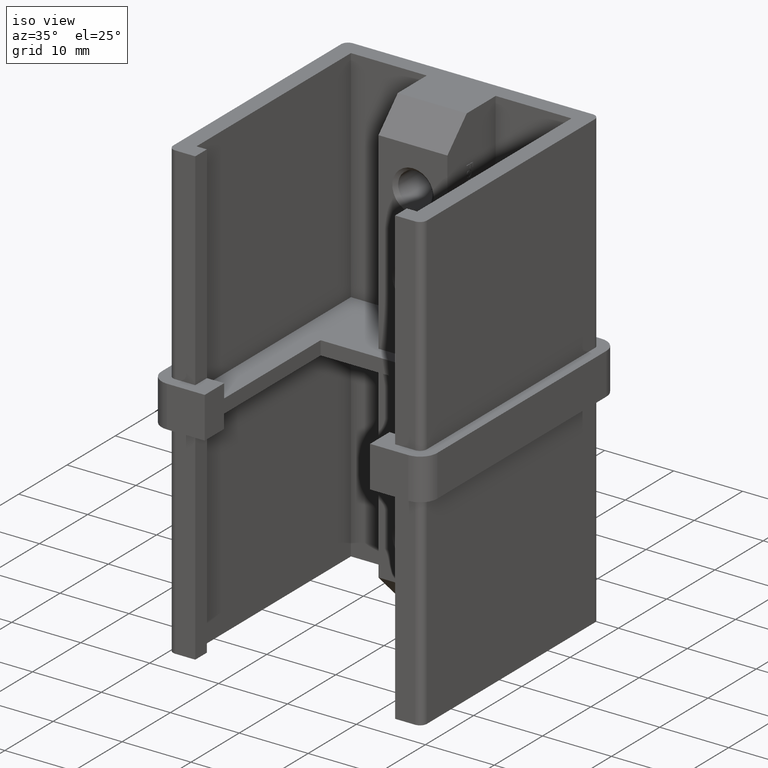
[diagram: clean part render]
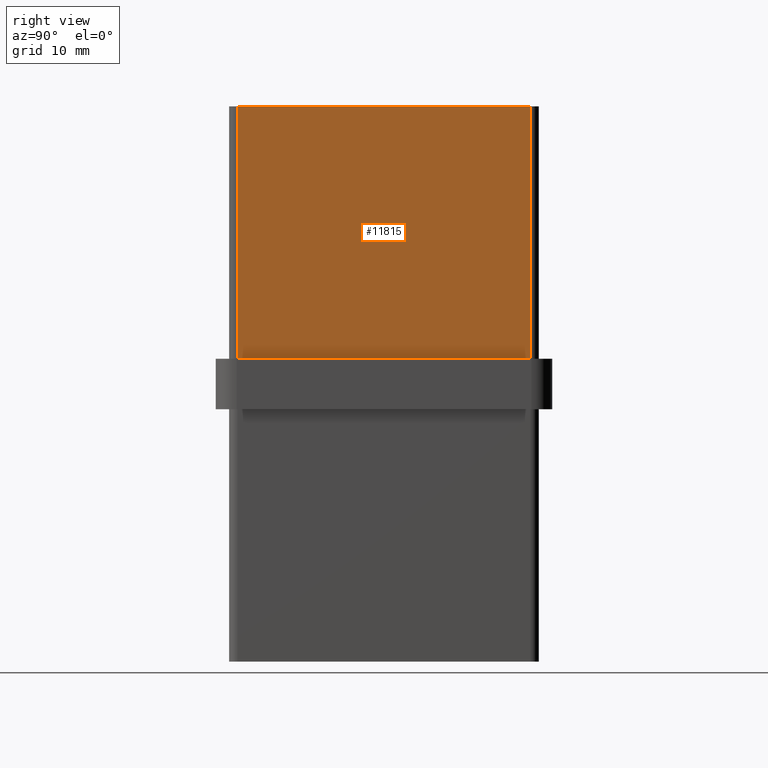
[diagram: tour spotlight — one face highlighted and labeled with its STEP entity id]
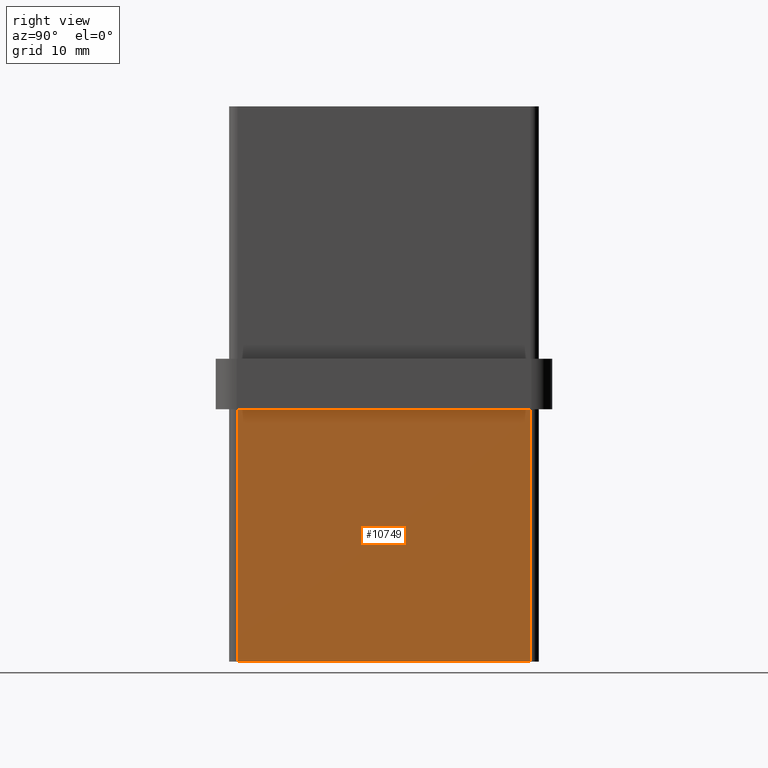
[diagram: tour spotlight — one face highlighted and labeled with its STEP entity id]
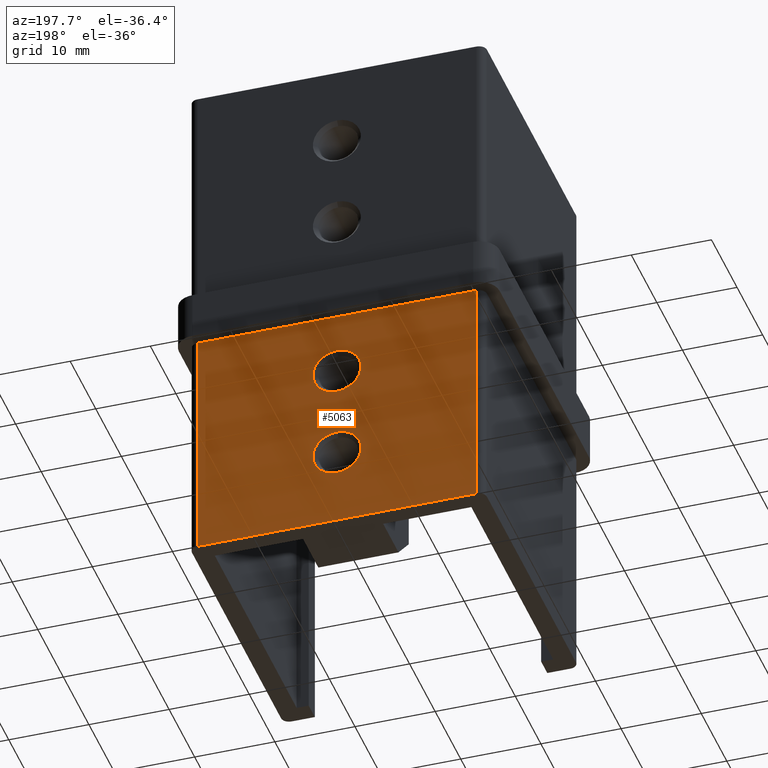
[diagram: tour spotlight — one face highlighted and labeled with its STEP entity id]
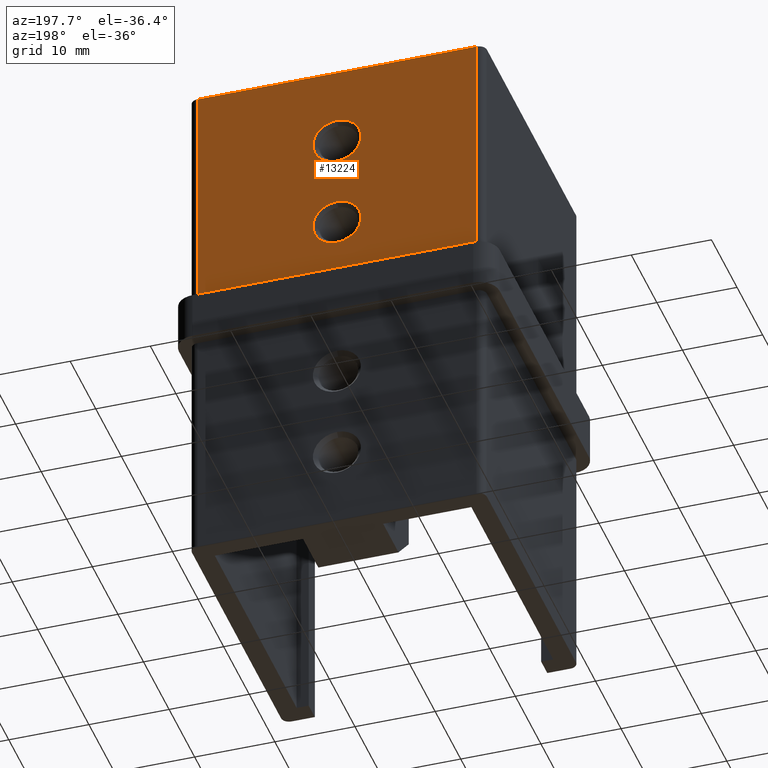
[diagram: tour spotlight — one face highlighted and labeled with its STEP entity id]
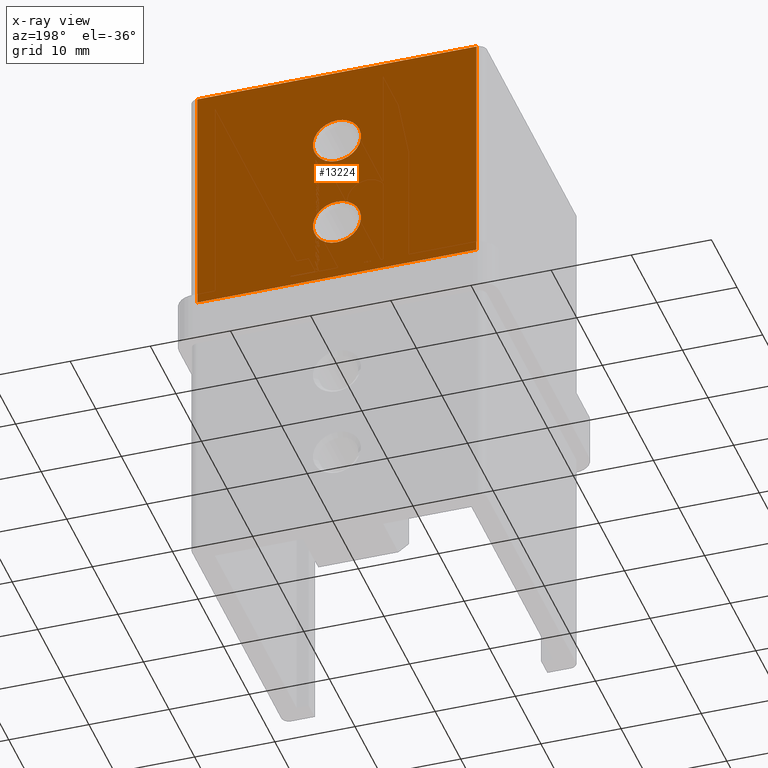
[diagram: x-ray of the same camera — body ghosted, this tour face saturated]
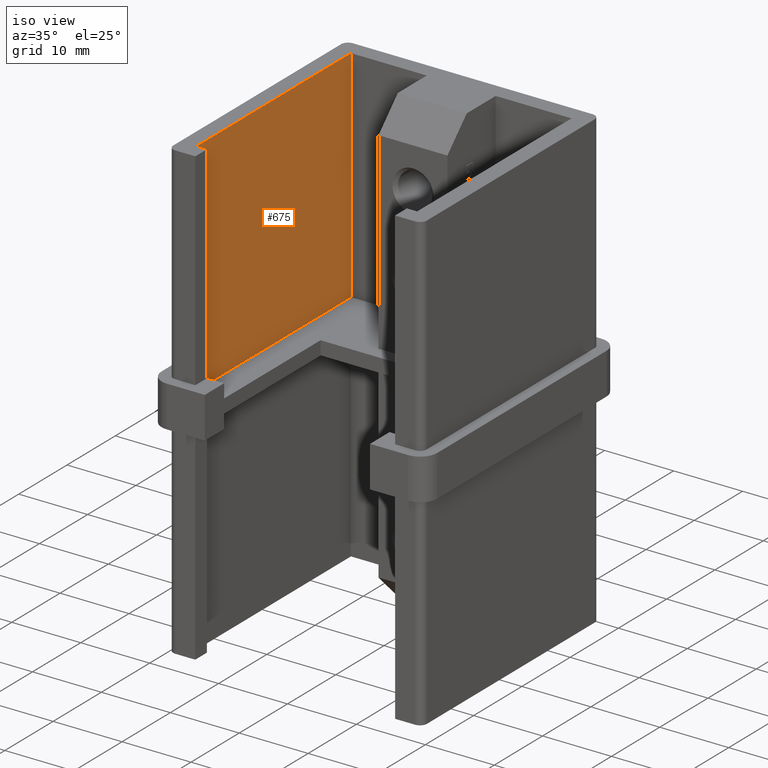
[diagram: tour spotlight — one face highlighted and labeled with its STEP entity id]
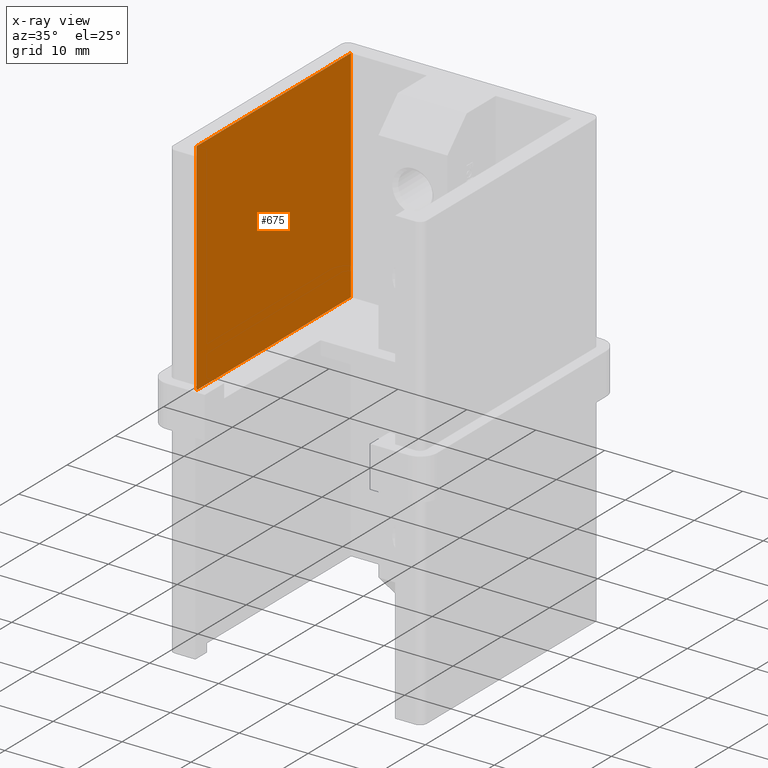
[diagram: x-ray of the same camera — body ghosted, this tour face saturated]
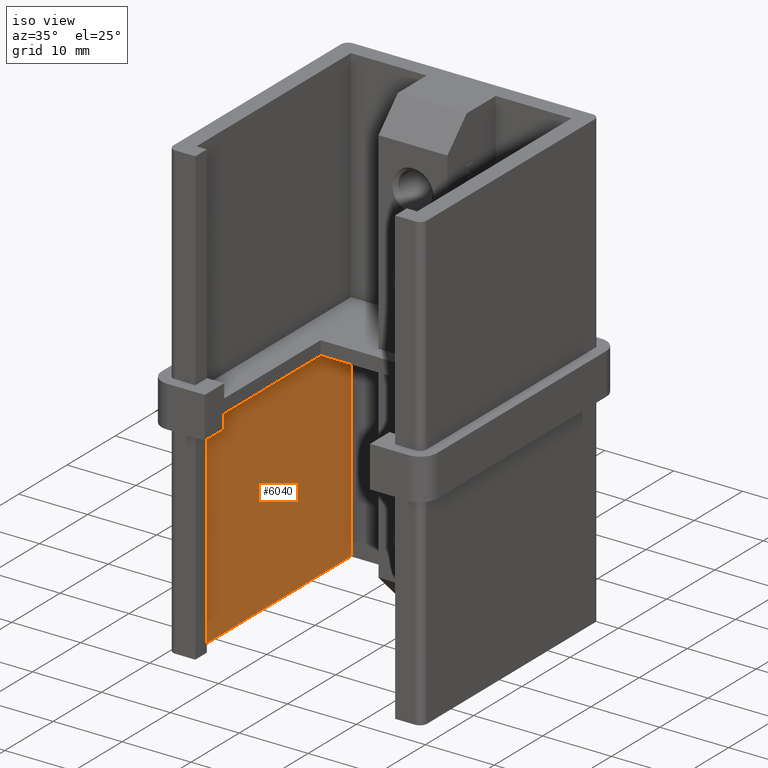
[diagram: tour spotlight — one face highlighted and labeled with its STEP entity id]
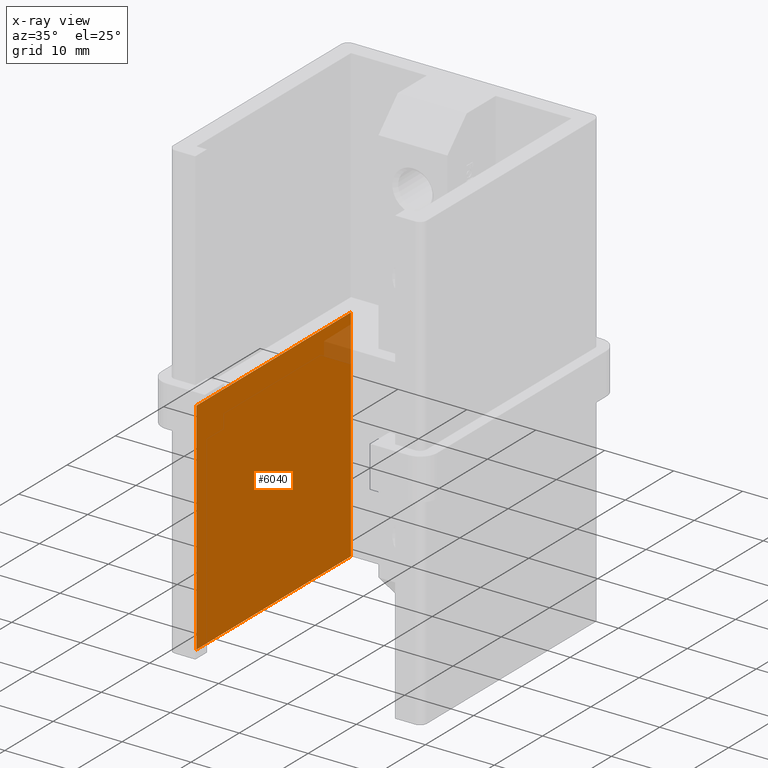
[diagram: x-ray of the same camera — body ghosted, this tour face saturated]
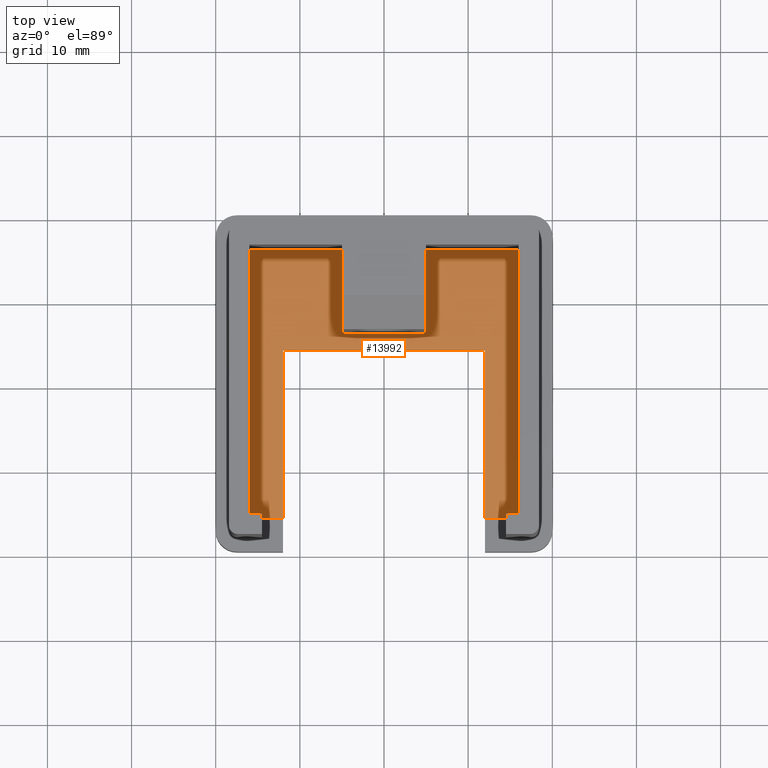
[diagram: tour spotlight — one face highlighted and labeled with its STEP entity id]
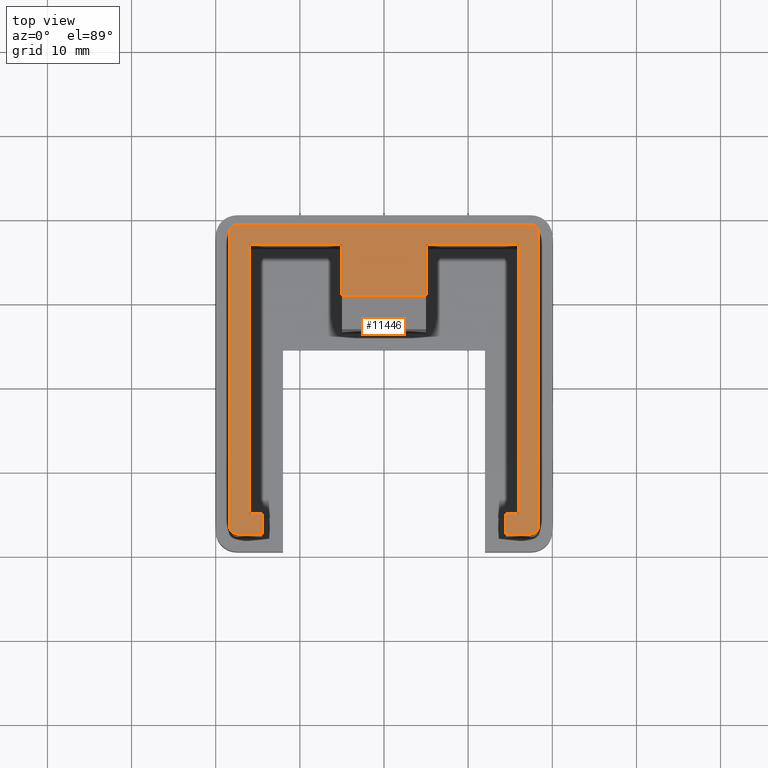
[diagram: tour spotlight — one face highlighted and labeled with its STEP entity id]
A machine part: a face-by-face anatomy tour. The part has 308 B-rep faces; the first image is the clean iso view, then the 8 largest visible faces are spotlighted one at a time (largest first), each with its STEP entity span.

Face 1 — right view, entity #11815. In plain terms, the highlighted planar face has unit normal (-1, 0, 0).
Definition (entity closure, byte-faithful):
#435 = CARTESIAN_POINT ( 'NONE',  ( 18.39999999999999147, 17.39999999999999858, 33.00000000000000000 ) ) ;
#609 = CARTESIAN_POINT ( 'NONE',  ( 18.39999999999999147, 17.39999999999999858, 3.000000000000000000 ) ) ;
#788 = CARTESIAN_POINT ( 'NONE',  ( 18.39999999999999147, 18.39999999999999858, 3.000000000000000000 ) ) ;
#965 = ORIENTED_EDGE ( 'NONE', *, *, #6591, .T. ) ;
#1014 = ORIENTED_EDGE ( 'NONE', *, *, #3425, .F. ) ;
#1163 = EDGE_LOOP ( 'NONE', ( #1014, #965, #5733, #7030 ) ) ;
#1873 = EDGE_CURVE ( 'NONE', #10950, #12580, #7161, .T. ) ;
#2587 = LINE ( 'NONE', #10184, #12107 ) ;
#3236 = CARTESIAN_POINT ( 'NONE',  ( 18.39999999999999147, 18.39999999999999858, 33.00000000000000000 ) ) ;
#3425 = EDGE_CURVE ( 'NONE', #13563, #12580, #9338, .T. ) ;
#3887 = CARTESIAN_POINT ( 'NONE',  ( 18.39999999999999147, 18.39999999999999858, 33.00000000000000000 ) ) ;
#4025 = DIRECTION ( 'NONE',  ( -1.000000000000000000, 0.000000000000000000, 0.000000000000000000 ) ) ;
#4479 = DIRECTION ( 'NONE',  ( 0.000000000000000000, 0.000000000000000000, -1.000000000000000000 ) ) ;
#5035 = DIRECTION ( 'NONE',  ( 0.000000000000000000, 0.000000000000000000, 1.000000000000000000 ) ) ;
#5733 = ORIENTED_EDGE ( 'NONE', *, *, #10377, .T. ) ;
#5852 = DIRECTION ( 'NONE',  ( -0.000000000000000000, -0.000000000000000000, 1.000000000000000000 ) ) ;
#6591 = EDGE_CURVE ( 'NONE', #13563, #7337, #2587, .T. ) ;
#6713 = FACE_OUTER_BOUND ( 'NONE', #1163, .T. ) ;
#6811 = VECTOR ( 'NONE', #5852, 1000.000000000000000 ) ;
#7030 = ORIENTED_EDGE ( 'NONE', *, *, #1873, .T. ) ;
#7161 = LINE ( 'NONE', #11428, #6811 ) ;
#7337 = VERTEX_POINT ( 'NONE', #10992 ) ;
#7621 = LINE ( 'NONE', #788, #12337 ) ;
#9338 = LINE ( 'NONE', #3236, #9525 ) ;
#9508 = PLANE ( 'NONE',  #12668 ) ;
#9525 = VECTOR ( 'NONE', #10049, 1000.000000000000000 ) ;
#10049 = DIRECTION ( 'NONE',  ( -0.000000000000000000, 1.000000000000000000, -0.000000000000000000 ) ) ;
#10184 = CARTESIAN_POINT ( 'NONE',  ( 18.39999999999999147, -17.40000000000000568, 33.00000000000000000 ) ) ;
#10377 = EDGE_CURVE ( 'NONE', #7337, #10950, #7621, .T. ) ;
#10950 = VERTEX_POINT ( 'NONE', #609 ) ;
#10992 = CARTESIAN_POINT ( 'NONE',  ( 18.39999999999999147, -17.40000000000000568, 3.000000000000000000 ) ) ;
#11095 = DIRECTION ( 'NONE',  ( -0.000000000000000000, 1.000000000000000000, -0.000000000000000000 ) ) ;
#11428 = CARTESIAN_POINT ( 'NONE',  ( 18.39999999999999147, 17.39999999999999858, 33.00000000000000000 ) ) ;
#11815 = ADVANCED_FACE ( 'NONE', ( #6713 ), #9508, .F. ) ;
#12107 = VECTOR ( 'NONE', #4479, 1000.000000000000000 ) ;
#12337 = VECTOR ( 'NONE', #11095, 1000.000000000000000 ) ;
#12580 = VERTEX_POINT ( 'NONE', #435 ) ;
#12668 = AXIS2_PLACEMENT_3D ( 'NONE', #3887, #4025, #5035 ) ;
#13563 = VERTEX_POINT ( 'NONE', #14585 ) ;
#14585 = CARTESIAN_POINT ( 'NONE',  ( 18.39999999999999147, -17.40000000000000568, 33.00000000000000000 ) ) ;

Face 2 — right view, entity #10749. In plain terms, the highlighted planar face has unit normal (1, -0, 0).
Definition (entity closure, byte-faithful):
#807 = ORIENTED_EDGE ( 'NONE', *, *, #4789, .F. ) ;
#1009 = CARTESIAN_POINT ( 'NONE',  ( 18.39999999999999147, 18.39999999999999858, -33.00000000000000000 ) ) ;
#1016 = VECTOR ( 'NONE', #13873, 1000.000000000000000 ) ;
#1430 = CARTESIAN_POINT ( 'NONE',  ( 18.39999999999999147, 17.39999999999999858, -33.00000000000000000 ) ) ;
#1762 = ORIENTED_EDGE ( 'NONE', *, *, #5074, .T. ) ;
#2136 = CARTESIAN_POINT ( 'NONE',  ( 18.39999999999999147, 17.39999999999999858, -33.00000000000000000 ) ) ;
#2618 = LINE ( 'NONE', #14126, #5483 ) ;
#3290 = CARTESIAN_POINT ( 'NONE',  ( 18.39999999999999147, -17.40000000000000568, -3.000000000000000000 ) ) ;
#3698 = AXIS2_PLACEMENT_3D ( 'NONE', #1009, #10086, #4279 ) ;
#4279 = DIRECTION ( 'NONE',  ( 0.000000000000000000, 0.000000000000000000, -1.000000000000000000 ) ) ;
#4619 = LINE ( 'NONE', #6553, #10796 ) ;
#4789 = EDGE_CURVE ( 'NONE', #12291, #12216, #2618, .T. ) ;
#5074 = EDGE_CURVE ( 'NONE', #13625, #12216, #7069, .T. ) ;
#5372 = DIRECTION ( 'NONE',  ( -0.000000000000000000, -0.000000000000000000, -1.000000000000000000 ) ) ;
#5483 = VECTOR ( 'NONE', #9734, 1000.000000000000000 ) ;
#5506 = EDGE_CURVE ( 'NONE', #6429, #13625, #11426, .T. ) ;
#5631 = EDGE_LOOP ( 'NONE', ( #807, #11859, #10352, #1762 ) ) ;
#6429 = VERTEX_POINT ( 'NONE', #6487 ) ;
#6487 = CARTESIAN_POINT ( 'NONE',  ( 18.39999999999999147, -17.40000000000000568, -33.00000000000000000 ) ) ;
#6553 = CARTESIAN_POINT ( 'NONE',  ( 18.39999999999999147, -17.40000000000000568, -33.00000000000000000 ) ) ;
#7069 = LINE ( 'NONE', #1430, #11258 ) ;
#8054 = DIRECTION ( 'NONE',  ( -0.000000000000000000, 0.000000000000000000, 1.000000000000000000 ) ) ;
#8871 = EDGE_CURVE ( 'NONE', #12291, #6429, #4619, .T. ) ;
#8958 = PLANE ( 'NONE',  #3698 ) ;
#9066 = CARTESIAN_POINT ( 'NONE',  ( 18.39999999999999147, 17.39999999999999858, -3.000000000000000000 ) ) ;
#9253 = CARTESIAN_POINT ( 'NONE',  ( 18.39999999999999147, 18.39999999999999858, -33.00000000000000000 ) ) ;
#9734 = DIRECTION ( 'NONE',  ( 0.000000000000000000, 1.000000000000000000, 0.000000000000000000 ) ) ;
#10086 = DIRECTION ( 'NONE',  ( 1.000000000000000000, -0.000000000000000000, 0.000000000000000000 ) ) ;
#10352 = ORIENTED_EDGE ( 'NONE', *, *, #5506, .T. ) ;
#10749 = ADVANCED_FACE ( 'NONE', ( #11449 ), #8958, .T. ) ;
#10796 = VECTOR ( 'NONE', #5372, 1000.000000000000000 ) ;
#11258 = VECTOR ( 'NONE', #8054, 1000.000000000000000 ) ;
#11426 = LINE ( 'NONE', #9253, #1016 ) ;
#11449 = FACE_OUTER_BOUND ( 'NONE', #5631, .T. ) ;
#11859 = ORIENTED_EDGE ( 'NONE', *, *, #8871, .T. ) ;
#12216 = VERTEX_POINT ( 'NONE', #9066 ) ;
#12291 = VERTEX_POINT ( 'NONE', #3290 ) ;
#13625 = VERTEX_POINT ( 'NONE', #2136 ) ;
#13873 = DIRECTION ( 'NONE',  ( 0.000000000000000000, 1.000000000000000000, 0.000000000000000000 ) ) ;
#14126 = CARTESIAN_POINT ( 'NONE',  ( 18.39999999999999147, 18.39999999999999858, -3.000000000000000000 ) ) ;

Face 3 — auxiliary view, entity #5063. In plain terms, the highlighted planar face has unit normal (0, 1, 0).
Definition (entity closure, byte-faithful):
#23 = LINE ( 'NONE', #2092, #14345 ) ;
#120 = VERTEX_POINT ( 'NONE', #6644 ) ;
#146 = DIRECTION ( 'NONE',  ( 0.000000000000000000, -0.000000000000000000, 1.000000000000000000 ) ) ;
#153 = CARTESIAN_POINT ( 'NONE',  ( 0.000000000000000000, 18.39999999999999858, -23.00000000000000000 ) ) ;
#353 = CARTESIAN_POINT ( 'NONE',  ( -17.40000000000000568, 18.39999999999999858, -33.00000000000000000 ) ) ;
#551 = VERTEX_POINT ( 'NONE', #3162 ) ;
#690 = ORIENTED_EDGE ( 'NONE', *, *, #4143, .F. ) ;
#712 = EDGE_CURVE ( 'NONE', #551, #6664, #7880, .T. ) ;
#834 = ORIENTED_EDGE ( 'NONE', *, *, #9889, .T. ) ;
#1100 = CARTESIAN_POINT ( 'NONE',  ( -17.40000000000000568, 18.39999999999999858, -33.00000000000000000 ) ) ;
#1450 = DIRECTION ( 'NONE',  ( 0.000000000000000000, 0.000000000000000000, 1.000000000000000000 ) ) ;
#1640 = VECTOR ( 'NONE', #8522, 1000.000000000000000 ) ;
#1790 = DIRECTION ( 'NONE',  ( 0.000000000000000000, 0.000000000000000000, 1.000000000000000000 ) ) ;
#2092 = CARTESIAN_POINT ( 'NONE',  ( 18.39999999999999147, 18.39999999999999858, -33.00000000000000000 ) ) ;
#2105 = LINE ( 'NONE', #7022, #9707 ) ;
#2511 = DIRECTION ( 'NONE',  ( 0.000000000000000000, 1.000000000000000000, 0.000000000000000000 ) ) ;
#2798 = CARTESIAN_POINT ( 'NONE',  ( 17.39999999999999147, 18.39999999999999858, -3.000000000000000000 ) ) ;
#2809 = FACE_OUTER_BOUND ( 'NONE', #2951, .T. ) ;
#2849 = DIRECTION ( 'NONE',  ( -1.000000000000000000, 0.000000000000000000, 0.000000000000000000 ) ) ;
#2882 = CARTESIAN_POINT ( 'NONE',  ( 17.39999999999999147, 18.39999999999999858, -33.00000000000000000 ) ) ;
#2951 = EDGE_LOOP ( 'NONE', ( #7839, #8674, #690, #13845 ) ) ;
#2976 = FACE_BOUND ( 'NONE', #12059, .T. ) ;
#3060 = CARTESIAN_POINT ( 'NONE',  ( 0.000000000000000000, 18.39999999999999858, -23.00000000000000000 ) ) ;
#3162 = CARTESIAN_POINT ( 'NONE',  ( 3.673940397442054445E-16, 18.39999999999999858, -25.99999999999999645 ) ) ;
#3463 = DIRECTION ( 'NONE',  ( -0.000000000000000000, -1.000000000000000000, -0.000000000000000000 ) ) ;
#3650 = VECTOR ( 'NONE', #3805, 1000.000000000000000 ) ;
#3805 = DIRECTION ( 'NONE',  ( 0.000000000000000000, -0.000000000000000000, 1.000000000000000000 ) ) ;
#4143 = EDGE_CURVE ( 'NONE', #14366, #5542, #2105, .T. ) ;
#4611 = DIRECTION ( 'NONE',  ( 0.000000000000000000, 0.000000000000000000, 1.000000000000000000 ) ) ;
#5063 = ADVANCED_FACE ( 'NONE', ( #8468, #2976, #2809 ), #9235, .T. ) ;
#5106 = AXIS2_PLACEMENT_3D ( 'NONE', #13709, #2511, #146 ) ;
#5161 = CIRCLE ( 'NONE', #8241, 2.999999999999995559 ) ;
#5542 = VERTEX_POINT ( 'NONE', #12635 ) ;
#5901 = EDGE_CURVE ( 'NONE', #120, #13192, #11243, .T. ) ;
#6001 = ORIENTED_EDGE ( 'NONE', *, *, #712, .T. ) ;
#6168 = EDGE_CURVE ( 'NONE', #7398, #5542, #12453, .T. ) ;
#6644 = CARTESIAN_POINT ( 'NONE',  ( 3.673940397442054445E-16, 18.39999999999999858, -13.99999999999999645 ) ) ;
#6664 = VERTEX_POINT ( 'NONE', #13632 ) ;
#6706 = CARTESIAN_POINT ( 'NONE',  ( 0.000000000000000000, 18.39999999999999858, -11.00000000000000178 ) ) ;
#6762 = EDGE_CURVE ( 'NONE', #13192, #120, #13698, .T. ) ;
#6876 = AXIS2_PLACEMENT_3D ( 'NONE', #13781, #8127, #1450 ) ;
#7022 = CARTESIAN_POINT ( 'NONE',  ( 18.39999999999999147, 18.39999999999999858, -3.000000000000000000 ) ) ;
#7398 = VERTEX_POINT ( 'NONE', #1100 ) ;
#7839 = ORIENTED_EDGE ( 'NONE', *, *, #13610, .T. ) ;
#7880 = CIRCLE ( 'NONE', #13902, 2.999999999999995559 ) ;
#8127 = DIRECTION ( 'NONE',  ( -0.000000000000000000, -1.000000000000000000, -0.000000000000000000 ) ) ;
#8241 = AXIS2_PLACEMENT_3D ( 'NONE', #153, #3463, #4611 ) ;
#8457 = EDGE_CURVE ( 'NONE', #14366, #14030, #11677, .T. ) ;
#8468 = FACE_BOUND ( 'NONE', #14560, .T. ) ;
#8522 = DIRECTION ( 'NONE',  ( -0.000000000000000000, -0.000000000000000000, -1.000000000000000000 ) ) ;
#8674 = ORIENTED_EDGE ( 'NONE', *, *, #6168, .T. ) ;
#8777 = AXIS2_PLACEMENT_3D ( 'NONE', #6706, #14572, #11058 ) ;
#9235 = PLANE ( 'NONE',  #5106 ) ;
#9483 = CARTESIAN_POINT ( 'NONE',  ( 17.39999999999999147, 18.39999999999999858, -33.00000000000000000 ) ) ;
#9707 = VECTOR ( 'NONE', #2849, 1000.000000000000000 ) ;
#9889 = EDGE_CURVE ( 'NONE', #6664, #551, #5161, .T. ) ;
#10037 = DIRECTION ( 'NONE',  ( -1.000000000000000000, 0.000000000000000000, 0.000000000000000000 ) ) ;
#10952 = DIRECTION ( 'NONE',  ( -0.000000000000000000, -1.000000000000000000, -0.000000000000000000 ) ) ;
#11006 = ORIENTED_EDGE ( 'NONE', *, *, #5901, .T. ) ;
#11058 = DIRECTION ( 'NONE',  ( 0.000000000000000000, 0.000000000000000000, 1.000000000000000000 ) ) ;
#11243 = CIRCLE ( 'NONE', #8777, 2.999999999999995559 ) ;
#11292 = ORIENTED_EDGE ( 'NONE', *, *, #6762, .T. ) ;
#11677 = LINE ( 'NONE', #2882, #1640 ) ;
#11760 = CARTESIAN_POINT ( 'NONE',  ( 0.000000000000000000, 18.39999999999999858, -8.000000000000005329 ) ) ;
#12059 = EDGE_LOOP ( 'NONE', ( #11292, #11006 ) ) ;
#12453 = LINE ( 'NONE', #353, #3650 ) ;
#12635 = CARTESIAN_POINT ( 'NONE',  ( -17.40000000000000568, 18.39999999999999858, -3.000000000000000000 ) ) ;
#13192 = VERTEX_POINT ( 'NONE', #11760 ) ;
#13610 = EDGE_CURVE ( 'NONE', #14030, #7398, #23, .T. ) ;
#13632 = CARTESIAN_POINT ( 'NONE',  ( 0.000000000000000000, 18.39999999999999858, -20.00000000000000355 ) ) ;
#13698 = CIRCLE ( 'NONE', #6876, 2.999999999999995559 ) ;
#13709 = CARTESIAN_POINT ( 'NONE',  ( 18.39999999999999147, 18.39999999999999858, -33.00000000000000000 ) ) ;
#13781 = CARTESIAN_POINT ( 'NONE',  ( 0.000000000000000000, 18.39999999999999858, -11.00000000000000178 ) ) ;
#13845 = ORIENTED_EDGE ( 'NONE', *, *, #8457, .T. ) ;
#13902 = AXIS2_PLACEMENT_3D ( 'NONE', #3060, #10952, #1790 ) ;
#14030 = VERTEX_POINT ( 'NONE', #9483 ) ;
#14345 = VECTOR ( 'NONE', #10037, 1000.000000000000000 ) ;
#14366 = VERTEX_POINT ( 'NONE', #2798 ) ;
#14560 = EDGE_LOOP ( 'NONE', ( #834, #6001 ) ) ;
#14572 = DIRECTION ( 'NONE',  ( -0.000000000000000000, -1.000000000000000000, -0.000000000000000000 ) ) ;

Face 4 — auxiliary view, entity #13224. An x-ray twin of the same camera follows (body ghosted, this face saturated) — the face is partly hidden behind the body. In plain terms, the highlighted planar face has unit normal (0, -1, 0).
Definition (entity closure, byte-faithful):
#20 = EDGE_CURVE ( 'NONE', #3315, #1460, #3088, .T. ) ;
#71 = VERTEX_POINT ( 'NONE', #12221 ) ;
#451 = EDGE_LOOP ( 'NONE', ( #5308, #5888 ) ) ;
#855 = AXIS2_PLACEMENT_3D ( 'NONE', #14667, #10161, #7859 ) ;
#880 = AXIS2_PLACEMENT_3D ( 'NONE', #7386, #3910, #9482 ) ;
#1078 = DIRECTION ( 'NONE',  ( -1.000000000000000000, 0.000000000000000000, 0.000000000000000000 ) ) ;
#1257 = CARTESIAN_POINT ( 'NONE',  ( -17.40000000000000568, 18.39999999999999858, 33.00000000000000000 ) ) ;
#1460 = VERTEX_POINT ( 'NONE', #2364 ) ;
#1577 = LINE ( 'NONE', #7402, #7598 ) ;
#1927 = ORIENTED_EDGE ( 'NONE', *, *, #8249, .T. ) ;
#1963 = VECTOR ( 'NONE', #1078, 1000.000000000000000 ) ;
#2055 = ORIENTED_EDGE ( 'NONE', *, *, #7860, .T. ) ;
#2179 = VERTEX_POINT ( 'NONE', #11658 ) ;
#2364 = CARTESIAN_POINT ( 'NONE',  ( 3.673940397442054445E-16, 18.39999999999999858, 20.00000000000000355 ) ) ;
#2409 = DIRECTION ( 'NONE',  ( 0.000000000000000000, 0.000000000000000000, -1.000000000000000000 ) ) ;
#2549 = EDGE_CURVE ( 'NONE', #13365, #2179, #7061, .T. ) ;
#2742 = EDGE_LOOP ( 'NONE', ( #13460, #1927, #14459, #11140 ) ) ;
#2887 = CARTESIAN_POINT ( 'NONE',  ( 18.39999999999999147, 18.39999999999999858, 33.00000000000000000 ) ) ;
#3088 = CIRCLE ( 'NONE', #855, 2.999999999999995559 ) ;
#3315 = VERTEX_POINT ( 'NONE', #6205 ) ;
#3364 = CARTESIAN_POINT ( 'NONE',  ( 17.39999999999999147, 18.39999999999999858, 33.00000000000000000 ) ) ;
#3651 = CARTESIAN_POINT ( 'NONE',  ( 0.000000000000000000, 18.39999999999999858, 13.99999999999998224 ) ) ;
#3699 = CARTESIAN_POINT ( 'NONE',  ( -17.40000000000000568, 18.39999999999999858, 33.00000000000000000 ) ) ;
#3910 = DIRECTION ( 'NONE',  ( 0.000000000000000000, -1.000000000000000000, 0.000000000000000000 ) ) ;
#4806 = ORIENTED_EDGE ( 'NONE', *, *, #11880, .T. ) ;
#5006 = LINE ( 'NONE', #1257, #10263 ) ;
#5308 = ORIENTED_EDGE ( 'NONE', *, *, #20, .T. ) ;
#5334 = DIRECTION ( 'NONE',  ( 0.000000000000000000, 0.000000000000000000, -1.000000000000000000 ) ) ;
#5623 = FACE_OUTER_BOUND ( 'NONE', #2742, .T. ) ;
#5633 = CIRCLE ( 'NONE', #9613, 2.999999999999995559 ) ;
#5888 = ORIENTED_EDGE ( 'NONE', *, *, #6057, .T. ) ;
#6011 = FACE_BOUND ( 'NONE', #451, .T. ) ;
#6057 = EDGE_CURVE ( 'NONE', #1460, #3315, #5633, .T. ) ;
#6205 = CARTESIAN_POINT ( 'NONE',  ( 0.000000000000000000, 18.39999999999999858, 25.99999999999999645 ) ) ;
#6281 = DIRECTION ( 'NONE',  ( 0.000000000000000000, -0.000000000000000000, -1.000000000000000000 ) ) ;
#6327 = CARTESIAN_POINT ( 'NONE',  ( 17.39999999999999147, 18.39999999999999858, 33.00000000000000000 ) ) ;
#6360 = VECTOR ( 'NONE', #11247, 1000.000000000000000 ) ;
#6849 = DIRECTION ( 'NONE',  ( 0.000000000000000000, -1.000000000000000000, 0.000000000000000000 ) ) ;
#6901 = CARTESIAN_POINT ( 'NONE',  ( 0.000000000000000000, 18.39999999999999858, 23.00000000000000000 ) ) ;
#7061 = LINE ( 'NONE', #3364, #6360 ) ;
#7386 = CARTESIAN_POINT ( 'NONE',  ( 0.000000000000000000, 18.39999999999999858, 11.00000000000000178 ) ) ;
#7402 = CARTESIAN_POINT ( 'NONE',  ( 18.39999999999999147, 18.39999999999999858, 3.000000000000000000 ) ) ;
#7452 = CARTESIAN_POINT ( 'NONE',  ( 3.673940397442037188E-16, 18.39999999999999858, 8.000000000000019540 ) ) ;
#7598 = VECTOR ( 'NONE', #11888, 1000.000000000000000 ) ;
#7683 = CARTESIAN_POINT ( 'NONE',  ( 0.000000000000000000, 18.39999999999999858, 11.00000000000000178 ) ) ;
#7735 = VERTEX_POINT ( 'NONE', #3651 ) ;
#7859 = DIRECTION ( 'NONE',  ( 0.000000000000000000, 0.000000000000000000, -1.000000000000000000 ) ) ;
#7860 = EDGE_CURVE ( 'NONE', #13720, #7735, #10551, .T. ) ;
#8249 = EDGE_CURVE ( 'NONE', #71, #9057, #5006, .T. ) ;
#8427 = DIRECTION ( 'NONE',  ( 0.000000000000000000, -1.000000000000000000, 0.000000000000000000 ) ) ;
#8807 = CIRCLE ( 'NONE', #10974, 2.999999999999981792 ) ;
#8935 = EDGE_CURVE ( 'NONE', #13365, #9057, #10079, .T. ) ;
#9057 = VERTEX_POINT ( 'NONE', #3699 ) ;
#9296 = AXIS2_PLACEMENT_3D ( 'NONE', #2887, #8427, #6281 ) ;
#9482 = DIRECTION ( 'NONE',  ( 0.000000000000000000, 0.000000000000000000, -1.000000000000000000 ) ) ;
#9613 = AXIS2_PLACEMENT_3D ( 'NONE', #6901, #6849, #2409 ) ;
#10079 = LINE ( 'NONE', #13497, #1963 ) ;
#10161 = DIRECTION ( 'NONE',  ( 0.000000000000000000, -1.000000000000000000, 0.000000000000000000 ) ) ;
#10263 = VECTOR ( 'NONE', #12401, 1000.000000000000000 ) ;
#10551 = CIRCLE ( 'NONE', #880, 2.999999999999981792 ) ;
#10782 = PLANE ( 'NONE',  #9296 ) ;
#10943 = EDGE_CURVE ( 'NONE', #2179, #71, #1577, .T. ) ;
#10974 = AXIS2_PLACEMENT_3D ( 'NONE', #7683, #12079, #5334 ) ;
#11140 = ORIENTED_EDGE ( 'NONE', *, *, #2549, .T. ) ;
#11247 = DIRECTION ( 'NONE',  ( 0.000000000000000000, 0.000000000000000000, -1.000000000000000000 ) ) ;
#11658 = CARTESIAN_POINT ( 'NONE',  ( 17.39999999999999147, 18.39999999999999858, 3.000000000000000000 ) ) ;
#11880 = EDGE_CURVE ( 'NONE', #7735, #13720, #8807, .T. ) ;
#11888 = DIRECTION ( 'NONE',  ( -1.000000000000000000, 0.000000000000000000, 0.000000000000000000 ) ) ;
#12079 = DIRECTION ( 'NONE',  ( 0.000000000000000000, -1.000000000000000000, 0.000000000000000000 ) ) ;
#12221 = CARTESIAN_POINT ( 'NONE',  ( -17.40000000000000568, 18.39999999999999858, 3.000000000000000000 ) ) ;
#12401 = DIRECTION ( 'NONE',  ( -0.000000000000000000, -0.000000000000000000, 1.000000000000000000 ) ) ;
#13224 = ADVANCED_FACE ( 'NONE', ( #14633, #6011, #5623 ), #10782, .F. ) ;
#13365 = VERTEX_POINT ( 'NONE', #6327 ) ;
#13460 = ORIENTED_EDGE ( 'NONE', *, *, #10943, .T. ) ;
#13497 = CARTESIAN_POINT ( 'NONE',  ( 18.39999999999999147, 18.39999999999999858, 33.00000000000000000 ) ) ;
#13720 = VERTEX_POINT ( 'NONE', #7452 ) ;
#14459 = ORIENTED_EDGE ( 'NONE', *, *, #8935, .F. ) ;
#14586 = EDGE_LOOP ( 'NONE', ( #4806, #2055 ) ) ;
#14633 = FACE_BOUND ( 'NONE', #14586, .T. ) ;
#14667 = CARTESIAN_POINT ( 'NONE',  ( 0.000000000000000000, 18.39999999999999858, 23.00000000000000000 ) ) ;

Face 5 — iso view, entity #675. An x-ray twin of the same camera follows (body ghosted, this face saturated) — the face is partly hidden behind the body. In plain terms, the highlighted planar face has unit normal (-1, 0, -0).
Definition (entity closure, byte-faithful):
#675 = ADVANCED_FACE ( 'NONE', ( #7541 ), #2964, .F. ) ;
#2518 = DIRECTION ( 'NONE',  ( -0.000000000000000000, 1.000000000000000000, -0.000000000000000000 ) ) ;
#2964 = PLANE ( 'NONE',  #3402 ) ;
#3402 = AXIS2_PLACEMENT_3D ( 'NONE', #4152, #4108, #10850 ) ;
#3813 = ORIENTED_EDGE ( 'NONE', *, *, #7374, .F. ) ;
#4014 = DIRECTION ( 'NONE',  ( -0.000000000000000000, -1.000000000000000000, -0.000000000000000000 ) ) ;
#4108 = DIRECTION ( 'NONE',  ( -1.000000000000000000, 0.000000000000000000, -0.000000000000000000 ) ) ;
#4139 = ORIENTED_EDGE ( 'NONE', *, *, #7580, .F. ) ;
#4152 = CARTESIAN_POINT ( 'NONE',  ( -16.00000000000000000, 16.00000000000000000, -3.000000000000000000 ) ) ;
#4464 = LINE ( 'NONE', #6929, #10812 ) ;
#5429 = VECTOR ( 'NONE', #4014, 1000.000000000000000 ) ;
#6145 = VECTOR ( 'NONE', #13384, 1000.000000000000000 ) ;
#6510 = EDGE_LOOP ( 'NONE', ( #4139, #7204, #6748, #3813 ) ) ;
#6748 = ORIENTED_EDGE ( 'NONE', *, *, #10009, .F. ) ;
#6764 = CARTESIAN_POINT ( 'NONE',  ( -16.00000000000000000, -16.00000000000000000, -3.000000000000000000 ) ) ;
#6841 = LINE ( 'NONE', #6764, #6145 ) ;
#6929 = CARTESIAN_POINT ( 'NONE',  ( -16.00000000000000000, 16.00000000000000000, -3.000000000000000000 ) ) ;
#7204 = ORIENTED_EDGE ( 'NONE', *, *, #14212, .T. ) ;
#7374 = EDGE_CURVE ( 'NONE', #14251, #8796, #6841, .T. ) ;
#7436 = CARTESIAN_POINT ( 'NONE',  ( -16.00000000000000000, 16.00000000000000000, 1.000000000000000000 ) ) ;
#7541 = FACE_OUTER_BOUND ( 'NONE', #6510, .T. ) ;
#7580 = EDGE_CURVE ( 'NONE', #14139, #14251, #11375, .T. ) ;
#8796 = VERTEX_POINT ( 'NONE', #12974 ) ;
#9114 = CARTESIAN_POINT ( 'NONE',  ( -16.00000000000000000, -16.00000000000000000, 1.000000000000000000 ) ) ;
#9852 = VERTEX_POINT ( 'NONE', #13516 ) ;
#10009 = EDGE_CURVE ( 'NONE', #8796, #9852, #10413, .T. ) ;
#10413 = LINE ( 'NONE', #13715, #11120 ) ;
#10812 = VECTOR ( 'NONE', #11227, 1000.000000000000000 ) ;
#10850 = DIRECTION ( 'NONE',  ( -0.000000000000000000, 0.000000000000000000, 1.000000000000000000 ) ) ;
#11120 = VECTOR ( 'NONE', #2518, 1000.000000000000000 ) ;
#11227 = DIRECTION ( 'NONE',  ( -0.000000000000000000, -0.000000000000000000, 1.000000000000000000 ) ) ;
#11375 = LINE ( 'NONE', #13033, #5429 ) ;
#12974 = CARTESIAN_POINT ( 'NONE',  ( -16.00000000000000000, -16.00000000000000000, 33.00000000000000000 ) ) ;
#13033 = CARTESIAN_POINT ( 'NONE',  ( -16.00000000000000000, -16.00000000000000000, 1.000000000000000000 ) ) ;
#13384 = DIRECTION ( 'NONE',  ( -0.000000000000000000, -0.000000000000000000, 1.000000000000000000 ) ) ;
#13516 = CARTESIAN_POINT ( 'NONE',  ( -16.00000000000000000, 16.00000000000000000, 33.00000000000000000 ) ) ;
#13715 = CARTESIAN_POINT ( 'NONE',  ( -16.00000000000000000, 16.00000000000000000, 33.00000000000000000 ) ) ;
#14139 = VERTEX_POINT ( 'NONE', #7436 ) ;
#14212 = EDGE_CURVE ( 'NONE', #14139, #9852, #4464, .T. ) ;
#14251 = VERTEX_POINT ( 'NONE', #9114 ) ;

Face 6 — iso view, entity #6040. An x-ray twin of the same camera follows (body ghosted, this face saturated) — the face is partly hidden behind the body. In plain terms, the highlighted planar face has unit normal (-1, 0, -0).
Definition (entity closure, byte-faithful):
#74 = CARTESIAN_POINT ( 'NONE',  ( -16.00000000000000000, -16.00000000000000000, -1.000000000000000000 ) ) ;
#991 = CARTESIAN_POINT ( 'NONE',  ( -16.00000000000000000, 16.00000000000000000, -1.000000000000000000 ) ) ;
#1368 = EDGE_CURVE ( 'NONE', #1884, #7165, #3077, .T. ) ;
#1829 = VERTEX_POINT ( 'NONE', #5655 ) ;
#1830 = ORIENTED_EDGE ( 'NONE', *, *, #11117, .T. ) ;
#1884 = VERTEX_POINT ( 'NONE', #4866 ) ;
#2068 = CARTESIAN_POINT ( 'NONE',  ( -16.00000000000000000, -16.00000000000000000, -3.000000000000000000 ) ) ;
#2626 = LINE ( 'NONE', #10148, #9866 ) ;
#3077 = LINE ( 'NONE', #2068, #4313 ) ;
#3250 = DIRECTION ( 'NONE',  ( -0.000000000000000000, -0.000000000000000000, 1.000000000000000000 ) ) ;
#4112 = VECTOR ( 'NONE', #14282, 1000.000000000000000 ) ;
#4313 = VECTOR ( 'NONE', #3250, 1000.000000000000000 ) ;
#4405 = VECTOR ( 'NONE', #7997, 1000.000000000000000 ) ;
#4866 = CARTESIAN_POINT ( 'NONE',  ( -16.00000000000000000, -16.00000000000000000, -33.00000000000000000 ) ) ;
#5278 = CARTESIAN_POINT ( 'NONE',  ( -16.00000000000000000, 16.00000000000000000, -33.00000000000000000 ) ) ;
#5540 = LINE ( 'NONE', #5278, #4112 ) ;
#5655 = CARTESIAN_POINT ( 'NONE',  ( -16.00000000000000000, 16.00000000000000000, -33.00000000000000000 ) ) ;
#5713 = DIRECTION ( 'NONE',  ( -0.000000000000000000, 0.000000000000000000, 1.000000000000000000 ) ) ;
#6040 = ADVANCED_FACE ( 'NONE', ( #8627 ), #10217, .F. ) ;
#7165 = VERTEX_POINT ( 'NONE', #10068 ) ;
#7997 = DIRECTION ( 'NONE',  ( -0.000000000000000000, -1.000000000000000000, -0.000000000000000000 ) ) ;
#8627 = FACE_OUTER_BOUND ( 'NONE', #13673, .T. ) ;
#9089 = ORIENTED_EDGE ( 'NONE', *, *, #1368, .F. ) ;
#9538 = AXIS2_PLACEMENT_3D ( 'NONE', #13569, #12376, #5713 ) ;
#9866 = VECTOR ( 'NONE', #11277, 1000.000000000000000 ) ;
#10068 = CARTESIAN_POINT ( 'NONE',  ( -16.00000000000000000, -16.00000000000000000, -1.000000000000000000 ) ) ;
#10148 = CARTESIAN_POINT ( 'NONE',  ( -16.00000000000000000, 16.00000000000000000, -3.000000000000000000 ) ) ;
#10160 = ORIENTED_EDGE ( 'NONE', *, *, #11252, .T. ) ;
#10217 = PLANE ( 'NONE',  #9538 ) ;
#11117 = EDGE_CURVE ( 'NONE', #11916, #7165, #11974, .T. ) ;
#11252 = EDGE_CURVE ( 'NONE', #1829, #11916, #2626, .T. ) ;
#11277 = DIRECTION ( 'NONE',  ( -0.000000000000000000, -0.000000000000000000, 1.000000000000000000 ) ) ;
#11916 = VERTEX_POINT ( 'NONE', #991 ) ;
#11974 = LINE ( 'NONE', #74, #4405 ) ;
#12376 = DIRECTION ( 'NONE',  ( -1.000000000000000000, 0.000000000000000000, -0.000000000000000000 ) ) ;
#13569 = CARTESIAN_POINT ( 'NONE',  ( -16.00000000000000000, 16.00000000000000000, -3.000000000000000000 ) ) ;
#13673 = EDGE_LOOP ( 'NONE', ( #10160, #1830, #9089, #14258 ) ) ;
#13771 = EDGE_CURVE ( 'NONE', #1884, #1829, #5540, .T. ) ;
#14258 = ORIENTED_EDGE ( 'NONE', *, *, #13771, .T. ) ;
#14282 = DIRECTION ( 'NONE',  ( 0.000000000000000000, 1.000000000000000000, 0.000000000000000000 ) ) ;

Face 7 — top view, entity #13992. In plain terms, the highlighted planar face has unit normal (-0, 0, -1).
Definition (entity closure, byte-faithful):
#60 = CARTESIAN_POINT ( 'NONE',  ( 16.00000000000000355, -16.00000000000000000, 1.000000000000000000 ) ) ;
#294 = ORIENTED_EDGE ( 'NONE', *, *, #7580, .T. ) ;
#330 = VECTOR ( 'NONE', #4031, 1000.000000000000000 ) ;
#503 = AXIS2_PLACEMENT_3D ( 'NONE', #8107, #2466, #10360 ) ;
#546 = DIRECTION ( 'NONE',  ( -0.000000000000000000, -1.000000000000000000, -0.000000000000000000 ) ) ;
#589 = ORIENTED_EDGE ( 'NONE', *, *, #5446, .T. ) ;
#815 = CARTESIAN_POINT ( 'NONE',  ( -5.000000000000000000, 6.000000000000003553, 1.000000000000000000 ) ) ;
#935 = EDGE_CURVE ( 'NONE', #13272, #11131, #8405, .T. ) ;
#1053 = ORIENTED_EDGE ( 'NONE', *, *, #2997, .T. ) ;
#1066 = EDGE_CURVE ( 'NONE', #3423, #13611, #4698, .T. ) ;
#1118 = CARTESIAN_POINT ( 'NONE',  ( 5.000000000000000000, 15.99999999999999645, 1.000000000000000000 ) ) ;
#1190 = VECTOR ( 'NONE', #4394, 1000.000000000000000 ) ;
#1692 = VECTOR ( 'NONE', #546, 1000.000000000000000 ) ;
#1729 = CARTESIAN_POINT ( 'NONE',  ( 5.000000000000000000, 6.000000000000003553, 1.000000000000000000 ) ) ;
#2269 = LINE ( 'NONE', #4650, #7603 ) ;
#2466 = DIRECTION ( 'NONE',  ( -0.000000000000000000, 0.000000000000000000, -1.000000000000000000 ) ) ;
#2512 = VERTEX_POINT ( 'NONE', #14576 ) ;
#2686 = FACE_OUTER_BOUND ( 'NONE', #8349, .T. ) ;
#2736 = CARTESIAN_POINT ( 'NONE',  ( 16.00000000000000355, 16.00000000000000000, 1.000000000000000000 ) ) ;
#2997 = EDGE_CURVE ( 'NONE', #4878, #13272, #2269, .T. ) ;
#3155 = LINE ( 'NONE', #2736, #330 ) ;
#3211 = CARTESIAN_POINT ( 'NONE',  ( -5.000000000000000000, 15.99999999999999645, 1.000000000000000000 ) ) ;
#3423 = VERTEX_POINT ( 'NONE', #7802 ) ;
#3475 = DIRECTION ( 'NONE',  ( 1.000000000000000000, -8.673617379884031528E-16, -0.000000000000000000 ) ) ;
#3558 = VECTOR ( 'NONE', #4311, 1000.000000000000000 ) ;
#3732 = EDGE_CURVE ( 'NONE', #2512, #5785, #3155, .T. ) ;
#3926 = LINE ( 'NONE', #815, #3558 ) ;
#4014 = DIRECTION ( 'NONE',  ( -0.000000000000000000, -1.000000000000000000, -0.000000000000000000 ) ) ;
#4031 = DIRECTION ( 'NONE',  ( -0.000000000000000000, 1.000000000000000000, -0.000000000000000000 ) ) ;
#4033 = CARTESIAN_POINT ( 'NONE',  ( 12.00000000000000178, 4.000000000000000000, 1.000000000000000000 ) ) ;
#4283 = ORIENTED_EDGE ( 'NONE', *, *, #1066, .T. ) ;
#4311 = DIRECTION ( 'NONE',  ( -1.000000000000000000, -0.000000000000000000, -0.000000000000000000 ) ) ;
#4382 = VECTOR ( 'NONE', #7059, 1000.000000000000000 ) ;
#4394 = DIRECTION ( 'NONE',  ( -1.000000000000000000, -3.154042683594194134E-16, -0.000000000000000000 ) ) ;
#4515 = CARTESIAN_POINT ( 'NONE',  ( 5.000000000000000000, 6.000000000000003553, 1.000000000000000000 ) ) ;
#4533 = EDGE_CURVE ( 'NONE', #5271, #14139, #10578, .T. ) ;
#4585 = EDGE_CURVE ( 'NONE', #11131, #2512, #10051, .T. ) ;
#4588 = VECTOR ( 'NONE', #5876, 1000.000000000000000 ) ;
#4650 = CARTESIAN_POINT ( 'NONE',  ( -12.00000000000000000, 4.000000000000000000, 1.000000000000000000 ) ) ;
#4698 = LINE ( 'NONE', #1729, #1692 ) ;
#4853 = DIRECTION ( 'NONE',  ( -0.000000000000000000, -1.000000000000000000, -0.000000000000000000 ) ) ;
#4878 = VERTEX_POINT ( 'NONE', #11887 ) ;
#4954 = VECTOR ( 'NONE', #3475, 1000.000000000000000 ) ;
#5069 = VECTOR ( 'NONE', #4853, 1000.000000000000000 ) ;
#5271 = VERTEX_POINT ( 'NONE', #13096 ) ;
#5429 = VECTOR ( 'NONE', #4014, 1000.000000000000000 ) ;
#5446 = EDGE_CURVE ( 'NONE', #14251, #10699, #12483, .T. ) ;
#5785 = VERTEX_POINT ( 'NONE', #9968 ) ;
#5818 = VECTOR ( 'NONE', #10230, 1000.000000000000000 ) ;
#5836 = EDGE_CURVE ( 'NONE', #7357, #5271, #8784, .T. ) ;
#5876 = DIRECTION ( 'NONE',  ( -1.000000000000000000, 3.154042683594195121E-16, -0.000000000000000000 ) ) ;
#6053 = CARTESIAN_POINT ( 'NONE',  ( 12.00000000000000178, -15.99999999999999645, 1.000000000000000000 ) ) ;
#6070 = ORIENTED_EDGE ( 'NONE', *, *, #935, .T. ) ;
#6710 = ORIENTED_EDGE ( 'NONE', *, *, #8342, .T. ) ;
#6814 = CARTESIAN_POINT ( 'NONE',  ( -12.00000000000000000, 4.000000000000000000, 1.000000000000000000 ) ) ;
#6978 = DIRECTION ( 'NONE',  ( 1.000000000000000000, 0.000000000000000000, 0.000000000000000000 ) ) ;
#7059 = DIRECTION ( 'NONE',  ( 1.000000000000000000, -0.000000000000000000, -0.000000000000000000 ) ) ;
#7357 = VERTEX_POINT ( 'NONE', #7805 ) ;
#7436 = CARTESIAN_POINT ( 'NONE',  ( -16.00000000000000000, 16.00000000000000000, 1.000000000000000000 ) ) ;
#7580 = EDGE_CURVE ( 'NONE', #14139, #14251, #11375, .T. ) ;
#7603 = VECTOR ( 'NONE', #6978, 1000.000000000000000 ) ;
#7802 = CARTESIAN_POINT ( 'NONE',  ( 5.000000000000000000, 15.99999999999999645, 1.000000000000000000 ) ) ;
#7805 = CARTESIAN_POINT ( 'NONE',  ( -5.000000000000000000, 6.000000000000003553, 1.000000000000000000 ) ) ;
#7820 = DIRECTION ( 'NONE',  ( -0.000000000000000000, 1.000000000000000000, -0.000000000000000000 ) ) ;
#7837 = CARTESIAN_POINT ( 'NONE',  ( -11.99999999999999822, -16.00000000000000000, 1.000000000000000000 ) ) ;
#8090 = LINE ( 'NONE', #6814, #5818 ) ;
#8107 = CARTESIAN_POINT ( 'NONE',  ( 0.000000000000000000, 0.000000000000000000, 1.000000000000000000 ) ) ;
#8342 = EDGE_CURVE ( 'NONE', #13611, #7357, #3926, .T. ) ;
#8349 = EDGE_LOOP ( 'NONE', ( #14659, #1053, #6070, #11935, #11951, #13837, #4283, #6710, #11943, #9293, #294, #589 ) ) ;
#8405 = LINE ( 'NONE', #6053, #5069 ) ;
#8784 = LINE ( 'NONE', #3211, #14621 ) ;
#9114 = CARTESIAN_POINT ( 'NONE',  ( -16.00000000000000000, -16.00000000000000000, 1.000000000000000000 ) ) ;
#9173 = CARTESIAN_POINT ( 'NONE',  ( 12.00000000000000178, -15.99999999999999645, 1.000000000000000000 ) ) ;
#9293 = ORIENTED_EDGE ( 'NONE', *, *, #4533, .T. ) ;
#9968 = CARTESIAN_POINT ( 'NONE',  ( 16.00000000000000355, 16.00000000000000000, 1.000000000000000000 ) ) ;
#10051 = LINE ( 'NONE', #60, #4954 ) ;
#10230 = DIRECTION ( 'NONE',  ( -8.673617379884035472E-17, 1.000000000000000000, -0.000000000000000000 ) ) ;
#10360 = DIRECTION ( 'NONE',  ( -1.000000000000000000, 0.000000000000000000, 0.000000000000000000 ) ) ;
#10578 = LINE ( 'NONE', #11175, #4588 ) ;
#10699 = VERTEX_POINT ( 'NONE', #7837 ) ;
#11131 = VERTEX_POINT ( 'NONE', #9173 ) ;
#11175 = CARTESIAN_POINT ( 'NONE',  ( -16.00000000000000000, 16.00000000000000000, 1.000000000000000000 ) ) ;
#11375 = LINE ( 'NONE', #13033, #5429 ) ;
#11887 = CARTESIAN_POINT ( 'NONE',  ( -12.00000000000000000, 4.000000000000000000, 1.000000000000000000 ) ) ;
#11935 = ORIENTED_EDGE ( 'NONE', *, *, #4585, .T. ) ;
#11943 = ORIENTED_EDGE ( 'NONE', *, *, #5836, .T. ) ;
#11951 = ORIENTED_EDGE ( 'NONE', *, *, #3732, .T. ) ;
#12242 = EDGE_CURVE ( 'NONE', #5785, #3423, #13719, .T. ) ;
#12483 = LINE ( 'NONE', #13783, #4382 ) ;
#12518 = PLANE ( 'NONE',  #503 ) ;
#12791 = EDGE_CURVE ( 'NONE', #10699, #4878, #8090, .T. ) ;
#13033 = CARTESIAN_POINT ( 'NONE',  ( -16.00000000000000000, -16.00000000000000000, 1.000000000000000000 ) ) ;
#13096 = CARTESIAN_POINT ( 'NONE',  ( -5.000000000000000000, 15.99999999999999645, 1.000000000000000000 ) ) ;
#13272 = VERTEX_POINT ( 'NONE', #4033 ) ;
#13611 = VERTEX_POINT ( 'NONE', #4515 ) ;
#13719 = LINE ( 'NONE', #1118, #1190 ) ;
#13783 = CARTESIAN_POINT ( 'NONE',  ( -11.99999999999999822, -16.00000000000000000, 1.000000000000000000 ) ) ;
#13837 = ORIENTED_EDGE ( 'NONE', *, *, #12242, .T. ) ;
#13992 = ADVANCED_FACE ( 'NONE', ( #2686 ), #12518, .F. ) ;
#14139 = VERTEX_POINT ( 'NONE', #7436 ) ;
#14251 = VERTEX_POINT ( 'NONE', #9114 ) ;
#14576 = CARTESIAN_POINT ( 'NONE',  ( 16.00000000000000355, -16.00000000000000000, 1.000000000000000000 ) ) ;
#14621 = VECTOR ( 'NONE', #7820, 1000.000000000000000 ) ;
#14659 = ORIENTED_EDGE ( 'NONE', *, *, #12791, .T. ) ;

Face 8 — top view, entity #11446. In plain terms, the highlighted planar face has unit normal (0, 0, 1).
Definition (entity closure, byte-faithful):
#70 = CARTESIAN_POINT ( 'NONE',  ( 16.00000000000000355, -16.00000000000000000, 33.00000000000000000 ) ) ;
#165 = CARTESIAN_POINT ( 'NONE',  ( 14.50000000000000178, -15.99999999999999289, 33.00000000000000000 ) ) ;
#350 = LINE ( 'NONE', #3773, #11990 ) ;
#376 = VECTOR ( 'NONE', #9369, 1000.000000000000000 ) ;
#435 = CARTESIAN_POINT ( 'NONE',  ( 18.39999999999999147, 17.39999999999999858, 33.00000000000000000 ) ) ;
#633 = CARTESIAN_POINT ( 'NONE',  ( 0.000000000000000000, 0.000000000000000000, 33.00000000000000000 ) ) ;
#847 = ORIENTED_EDGE ( 'NONE', *, *, #3851, .T. ) ;
#975 = EDGE_CURVE ( 'NONE', #11733, #9335, #1858, .T. ) ;
#997 = ORIENTED_EDGE ( 'NONE', *, *, #1941, .T. ) ;
#1006 = VERTEX_POINT ( 'NONE', #1587 ) ;
#1078 = DIRECTION ( 'NONE',  ( -1.000000000000000000, 0.000000000000000000, 0.000000000000000000 ) ) ;
#1103 = DIRECTION ( 'NONE',  ( 1.000000000000000000, 0.000000000000000000, 0.000000000000000000 ) ) ;
#1108 = CARTESIAN_POINT ( 'NONE',  ( 5.000000000000000000, 9.999999999999996447, 33.00000000000000000 ) ) ;
#1396 = VECTOR ( 'NONE', #11722, 1000.000000000000000 ) ;
#1409 = CIRCLE ( 'NONE', #7026, 1.000000000000000888 ) ;
#1501 = ORIENTED_EDGE ( 'NONE', *, *, #11004, .T. ) ;
#1523 = EDGE_CURVE ( 'NONE', #1006, #13563, #10670, .T. ) ;
#1587 = CARTESIAN_POINT ( 'NONE',  ( 17.39999999999998792, -18.40000000000000568, 33.00000000000000000 ) ) ;
#1664 = CARTESIAN_POINT ( 'NONE',  ( 5.000000000000000000, 10.00000000000000178, 33.00000000000000000 ) ) ;
#1777 = CARTESIAN_POINT ( 'NONE',  ( -18.40000000000000568, 18.39999999999999858, 33.00000000000000000 ) ) ;
#1858 = LINE ( 'NONE', #1777, #2029 ) ;
#1941 = EDGE_CURVE ( 'NONE', #2738, #9797, #12410, .T. ) ;
#1960 = EDGE_CURVE ( 'NONE', #10653, #5358, #9071, .T. ) ;
#1963 = VECTOR ( 'NONE', #1078, 1000.000000000000000 ) ;
#2029 = VECTOR ( 'NONE', #10694, 1000.000000000000000 ) ;
#2059 = ORIENTED_EDGE ( 'NONE', *, *, #8935, .T. ) ;
#2131 = ORIENTED_EDGE ( 'NONE', *, *, #9311, .T. ) ;
#2344 = CARTESIAN_POINT ( 'NONE',  ( -17.40000000000000213, -18.40000000000000568, 33.00000000000000000 ) ) ;
#2463 = VECTOR ( 'NONE', #10758, 1000.000000000000000 ) ;
#2518 = DIRECTION ( 'NONE',  ( -0.000000000000000000, 1.000000000000000000, -0.000000000000000000 ) ) ;
#2590 = ORIENTED_EDGE ( 'NONE', *, *, #7936, .F. ) ;
#2738 = VERTEX_POINT ( 'NONE', #5121 ) ;
#2762 = LINE ( 'NONE', #3332, #6674 ) ;
#2839 = EDGE_CURVE ( 'NONE', #2984, #10653, #6379, .T. ) ;
#2963 = DIRECTION ( 'NONE',  ( 0.000000000000000000, 0.000000000000000000, 1.000000000000000000 ) ) ;
#2984 = VERTEX_POINT ( 'NONE', #2344 ) ;
#3117 = ORIENTED_EDGE ( 'NONE', *, *, #10872, .T. ) ;
#3236 = CARTESIAN_POINT ( 'NONE',  ( 18.39999999999999147, 18.39999999999999858, 33.00000000000000000 ) ) ;
#3332 = CARTESIAN_POINT ( 'NONE',  ( 16.00000000000000355, 16.00000000000000000, 33.00000000000000000 ) ) ;
#3425 = EDGE_CURVE ( 'NONE', #13563, #12580, #9338, .T. ) ;
#3478 = CARTESIAN_POINT ( 'NONE',  ( -14.49999999999999822, -15.99999999999999645, 33.00000000000000000 ) ) ;
#3545 = ORIENTED_EDGE ( 'NONE', *, *, #1523, .T. ) ;
#3555 = CARTESIAN_POINT ( 'NONE',  ( 14.50000000000000178, -15.99999999999999289, 33.00000000000000000 ) ) ;
#3565 = CARTESIAN_POINT ( 'NONE',  ( 17.39999999999999147, -17.40000000000000568, 33.00000000000000000 ) ) ;
#3647 = ORIENTED_EDGE ( 'NONE', *, *, #10009, .T. ) ;
#3699 = CARTESIAN_POINT ( 'NONE',  ( -17.40000000000000568, 18.39999999999999858, 33.00000000000000000 ) ) ;
#3740 = CARTESIAN_POINT ( 'NONE',  ( -18.40000000000000568, -17.40000000000000568, 33.00000000000000000 ) ) ;
#3773 = CARTESIAN_POINT ( 'NONE',  ( 16.00000000000000355, -16.00000000000000000, 33.00000000000000000 ) ) ;
#3851 = EDGE_CURVE ( 'NONE', #9797, #10686, #6016, .T. ) ;
#4324 = DIRECTION ( 'NONE',  ( 1.000000000000000000, 0.000000000000000000, 0.000000000000000000 ) ) ;
#4528 = CARTESIAN_POINT ( 'NONE',  ( -14.49999999999999822, -15.99999999999999645, 33.00000000000000000 ) ) ;
#4614 = VERTEX_POINT ( 'NONE', #9147 ) ;
#4652 = AXIS2_PLACEMENT_3D ( 'NONE', #3565, #11447, #8168 ) ;
#4701 = LINE ( 'NONE', #14013, #14579 ) ;
#4766 = VECTOR ( 'NONE', #11118, 1000.000000000000000 ) ;
#4801 = CARTESIAN_POINT ( 'NONE',  ( 18.39999999999999147, -18.40000000000000924, 33.00000000000000000 ) ) ;
#4918 = ORIENTED_EDGE ( 'NONE', *, *, #8890, .T. ) ;
#4966 = AXIS2_PLACEMENT_3D ( 'NONE', #9729, #2963, #10848 ) ;
#4992 = CIRCLE ( 'NONE', #4966, 1.000000000000000888 ) ;
#5121 = CARTESIAN_POINT ( 'NONE',  ( -5.000000000000000000, 10.00000000000000178, 33.00000000000000000 ) ) ;
#5209 = DIRECTION ( 'NONE',  ( 1.000000000000000000, 0.000000000000000000, -0.000000000000000000 ) ) ;
#5358 = VERTEX_POINT ( 'NONE', #3478 ) ;
#5378 = VECTOR ( 'NONE', #8159, 1000.000000000000000 ) ;
#5387 = EDGE_LOOP ( 'NONE', ( #2590, #997, #847, #6437, #3117, #1501, #13161, #11287, #3545, #8755, #7678, #2059, #6084, #13263, #4918, #10205, #5576, #13587, #3647, #2131 ) ) ;
#5544 = CARTESIAN_POINT ( 'NONE',  ( -17.40000000000000568, 17.39999999999999858, 33.00000000000000000 ) ) ;
#5576 = ORIENTED_EDGE ( 'NONE', *, *, #1960, .T. ) ;
#5924 = DIRECTION ( 'NONE',  ( -0.000000000000000000, -1.000000000000000000, -0.000000000000000000 ) ) ;
#6016 = LINE ( 'NONE', #9935, #4766 ) ;
#6078 = LINE ( 'NONE', #3555, #5378 ) ;
#6084 = ORIENTED_EDGE ( 'NONE', *, *, #10270, .T. ) ;
#6294 = VERTEX_POINT ( 'NONE', #70 ) ;
#6327 = CARTESIAN_POINT ( 'NONE',  ( 17.39999999999999147, 18.39999999999999858, 33.00000000000000000 ) ) ;
#6379 = LINE ( 'NONE', #10997, #12871 ) ;
#6437 = ORIENTED_EDGE ( 'NONE', *, *, #6631, .T. ) ;
#6631 = EDGE_CURVE ( 'NONE', #10686, #4614, #2762, .T. ) ;
#6670 = CARTESIAN_POINT ( 'NONE',  ( 5.000000000000000000, 15.99999999999999645, 33.00000000000000000 ) ) ;
#6674 = VECTOR ( 'NONE', #9205, 1000.000000000000000 ) ;
#6830 = CARTESIAN_POINT ( 'NONE',  ( 14.50000000000000178, -15.99999999999999289, 33.00000000000000000 ) ) ;
#6942 = AXIS2_PLACEMENT_3D ( 'NONE', #633, #8731, #5209 ) ;
#7020 = CARTESIAN_POINT ( 'NONE',  ( 16.00000000000000355, 16.00000000000000000, 33.00000000000000000 ) ) ;
#7026 = AXIS2_PLACEMENT_3D ( 'NONE', #5544, #13219, #8738 ) ;
#7678 = ORIENTED_EDGE ( 'NONE', *, *, #10751, .T. ) ;
#7713 = DIRECTION ( 'NONE',  ( 1.000000000000000000, 1.779203565104413973E-15, -0.000000000000000000 ) ) ;
#7773 = LINE ( 'NONE', #6830, #8988 ) ;
#7780 = CARTESIAN_POINT ( 'NONE',  ( -5.000000000000000000, 15.99999999999999645, 33.00000000000000000 ) ) ;
#7936 = EDGE_CURVE ( 'NONE', #2738, #9921, #4701, .T. ) ;
#8159 = DIRECTION ( 'NONE',  ( 0.000000000000000000, -1.000000000000000000, 0.000000000000000000 ) ) ;
#8168 = DIRECTION ( 'NONE',  ( 1.000000000000000000, 0.000000000000000000, 0.000000000000000000 ) ) ;
#8731 = DIRECTION ( 'NONE',  ( 0.000000000000000000, 0.000000000000000000, 1.000000000000000000 ) ) ;
#8738 = DIRECTION ( 'NONE',  ( 1.000000000000000000, 0.000000000000000000, 0.000000000000000000 ) ) ;
#8755 = ORIENTED_EDGE ( 'NONE', *, *, #3425, .T. ) ;
#8796 = VERTEX_POINT ( 'NONE', #12974 ) ;
#8890 = EDGE_CURVE ( 'NONE', #9335, #2984, #4992, .T. ) ;
#8905 = VECTOR ( 'NONE', #12395, 1000.000000000000000 ) ;
#8935 = EDGE_CURVE ( 'NONE', #13365, #9057, #10079, .T. ) ;
#8988 = VECTOR ( 'NONE', #10246, 1000.000000000000000 ) ;
#9057 = VERTEX_POINT ( 'NONE', #3699 ) ;
#9071 = LINE ( 'NONE', #4528, #8905 ) ;
#9147 = CARTESIAN_POINT ( 'NONE',  ( 16.00000000000000355, 16.00000000000000000, 33.00000000000000000 ) ) ;
#9205 = DIRECTION ( 'NONE',  ( 1.000000000000000000, -0.000000000000000000, -0.000000000000000000 ) ) ;
#9219 = CARTESIAN_POINT ( 'NONE',  ( 14.50000000000000178, -18.39999999999999503, 33.00000000000000000 ) ) ;
#9311 = EDGE_CURVE ( 'NONE', #9852, #9921, #11304, .T. ) ;
#9335 = VERTEX_POINT ( 'NONE', #3740 ) ;
#9338 = LINE ( 'NONE', #3236, #9525 ) ;
#9369 = DIRECTION ( 'NONE',  ( 1.000000000000000000, -0.000000000000000000, -0.000000000000000000 ) ) ;
#9473 = PLANE ( 'NONE',  #6942 ) ;
#9525 = VECTOR ( 'NONE', #10049, 1000.000000000000000 ) ;
#9729 = CARTESIAN_POINT ( 'NONE',  ( -17.40000000000000568, -17.40000000000000568, 33.00000000000000000 ) ) ;
#9797 = VERTEX_POINT ( 'NONE', #1664 ) ;
#9852 = VERTEX_POINT ( 'NONE', #13516 ) ;
#9921 = VERTEX_POINT ( 'NONE', #7780 ) ;
#9935 = CARTESIAN_POINT ( 'NONE',  ( 5.000000000000000000, 6.000000000000000000, 33.00000000000000000 ) ) ;
#10009 = EDGE_CURVE ( 'NONE', #8796, #9852, #10413, .T. ) ;
#10046 = LINE ( 'NONE', #4801, #1396 ) ;
#10049 = DIRECTION ( 'NONE',  ( -0.000000000000000000, 1.000000000000000000, -0.000000000000000000 ) ) ;
#10079 = LINE ( 'NONE', #13497, #1963 ) ;
#10163 = EDGE_CURVE ( 'NONE', #5358, #8796, #12887, .T. ) ;
#10205 = ORIENTED_EDGE ( 'NONE', *, *, #2839, .T. ) ;
#10246 = DIRECTION ( 'NONE',  ( -1.000000000000000000, 4.625929269271481378E-15, -0.000000000000000000 ) ) ;
#10270 = EDGE_CURVE ( 'NONE', #9057, #11733, #1409, .T. ) ;
#10399 = FACE_OUTER_BOUND ( 'NONE', #5387, .T. ) ;
#10413 = LINE ( 'NONE', #13715, #11120 ) ;
#10653 = VERTEX_POINT ( 'NONE', #12102 ) ;
#10670 = CIRCLE ( 'NONE', #4652, 1.000000000000000888 ) ;
#10686 = VERTEX_POINT ( 'NONE', #6670 ) ;
#10694 = DIRECTION ( 'NONE',  ( 0.000000000000000000, -1.000000000000000000, 0.000000000000000000 ) ) ;
#10751 = EDGE_CURVE ( 'NONE', #12580, #13365, #11105, .T. ) ;
#10758 = DIRECTION ( 'NONE',  ( -1.000000000000000000, -2.312964634635740689E-15, -0.000000000000000000 ) ) ;
#10826 = VERTEX_POINT ( 'NONE', #165 ) ;
#10848 = DIRECTION ( 'NONE',  ( 1.000000000000000000, 0.000000000000000000, 0.000000000000000000 ) ) ;
#10872 = EDGE_CURVE ( 'NONE', #4614, #6294, #350, .T. ) ;
#10997 = CARTESIAN_POINT ( 'NONE',  ( -14.49999999999999822, -18.40000000000000213, 33.00000000000000000 ) ) ;
#11004 = EDGE_CURVE ( 'NONE', #6294, #10826, #7773, .T. ) ;
#11105 = CIRCLE ( 'NONE', #14566, 1.000000000000000888 ) ;
#11118 = DIRECTION ( 'NONE',  ( 0.000000000000000000, 1.000000000000000000, 0.000000000000000000 ) ) ;
#11120 = VECTOR ( 'NONE', #2518, 1000.000000000000000 ) ;
#11185 = VECTOR ( 'NONE', #4324, 1000.000000000000000 ) ;
#11259 = EDGE_CURVE ( 'NONE', #14329, #1006, #10046, .T. ) ;
#11287 = ORIENTED_EDGE ( 'NONE', *, *, #11259, .T. ) ;
#11304 = LINE ( 'NONE', #7020, #376 ) ;
#11446 = ADVANCED_FACE ( 'NONE', ( #10399 ), #9473, .T. ) ;
#11447 = DIRECTION ( 'NONE',  ( 0.000000000000000000, 0.000000000000000000, 1.000000000000000000 ) ) ;
#11722 = DIRECTION ( 'NONE',  ( 1.000000000000000000, -3.558407130208844512E-15, -0.000000000000000000 ) ) ;
#11733 = VERTEX_POINT ( 'NONE', #12540 ) ;
#11990 = VECTOR ( 'NONE', #5924, 1000.000000000000000 ) ;
#12102 = CARTESIAN_POINT ( 'NONE',  ( -14.49999999999999822, -18.40000000000000213, 33.00000000000000000 ) ) ;
#12391 = DIRECTION ( 'NONE',  ( 0.000000000000000000, 0.000000000000000000, 1.000000000000000000 ) ) ;
#12395 = DIRECTION ( 'NONE',  ( -0.000000000000000000, 1.000000000000000000, -0.000000000000000000 ) ) ;
#12410 = LINE ( 'NONE', #1108, #11185 ) ;
#12540 = CARTESIAN_POINT ( 'NONE',  ( -18.40000000000000568, 17.39999999999999858, 33.00000000000000000 ) ) ;
#12580 = VERTEX_POINT ( 'NONE', #435 ) ;
#12871 = VECTOR ( 'NONE', #7713, 1000.000000000000000 ) ;
#12887 = LINE ( 'NONE', #14211, #2463 ) ;
#12974 = CARTESIAN_POINT ( 'NONE',  ( -16.00000000000000000, -16.00000000000000000, 33.00000000000000000 ) ) ;
#13161 = ORIENTED_EDGE ( 'NONE', *, *, #13947, .T. ) ;
#13219 = DIRECTION ( 'NONE',  ( 0.000000000000000000, 0.000000000000000000, 1.000000000000000000 ) ) ;
#13263 = ORIENTED_EDGE ( 'NONE', *, *, #975, .T. ) ;
#13365 = VERTEX_POINT ( 'NONE', #6327 ) ;
#13497 = CARTESIAN_POINT ( 'NONE',  ( 18.39999999999999147, 18.39999999999999858, 33.00000000000000000 ) ) ;
#13516 = CARTESIAN_POINT ( 'NONE',  ( -16.00000000000000000, 16.00000000000000000, 33.00000000000000000 ) ) ;
#13563 = VERTEX_POINT ( 'NONE', #14585 ) ;
#13587 = ORIENTED_EDGE ( 'NONE', *, *, #10163, .T. ) ;
#13631 = CARTESIAN_POINT ( 'NONE',  ( 17.39999999999999147, 17.39999999999999858, 33.00000000000000000 ) ) ;
#13715 = CARTESIAN_POINT ( 'NONE',  ( -16.00000000000000000, 16.00000000000000000, 33.00000000000000000 ) ) ;
#13947 = EDGE_CURVE ( 'NONE', #10826, #14329, #6078, .T. ) ;
#14013 = CARTESIAN_POINT ( 'NONE',  ( -5.000000000000000000, 6.000000000000000000, 33.00000000000000000 ) ) ;
#14112 = DIRECTION ( 'NONE',  ( 0.000000000000000000, 1.000000000000000000, 0.000000000000000000 ) ) ;
#14211 = CARTESIAN_POINT ( 'NONE',  ( -16.00000000000000000, -16.00000000000000000, 33.00000000000000000 ) ) ;
#14329 = VERTEX_POINT ( 'NONE', #9219 ) ;
#14566 = AXIS2_PLACEMENT_3D ( 'NONE', #13631, #12391, #1103 ) ;
#14579 = VECTOR ( 'NONE', #14112, 1000.000000000000000 ) ;
#14585 = CARTESIAN_POINT ( 'NONE',  ( 18.39999999999999147, -17.40000000000000568, 33.00000000000000000 ) ) ;